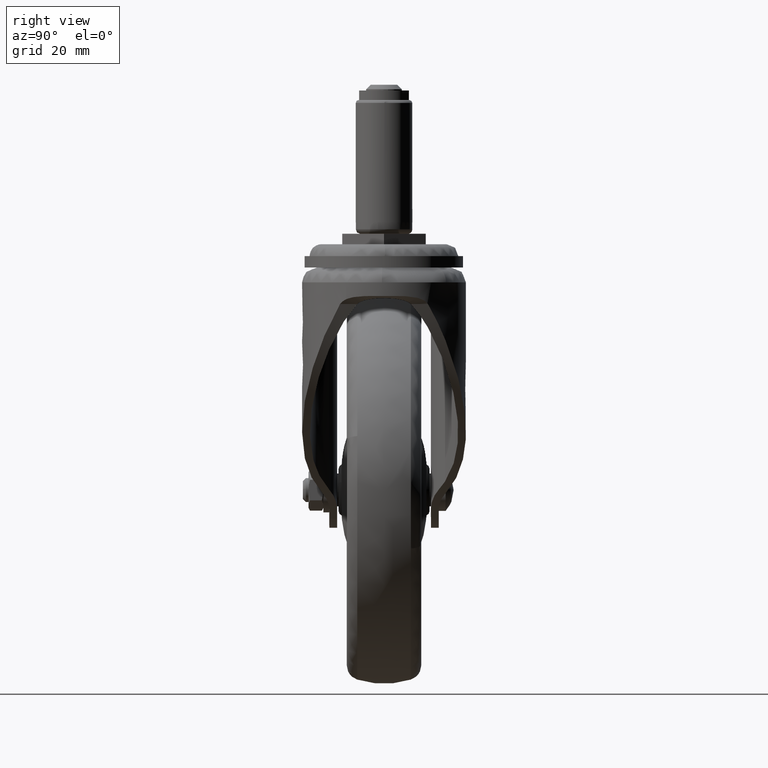
[diagram: clean part render]
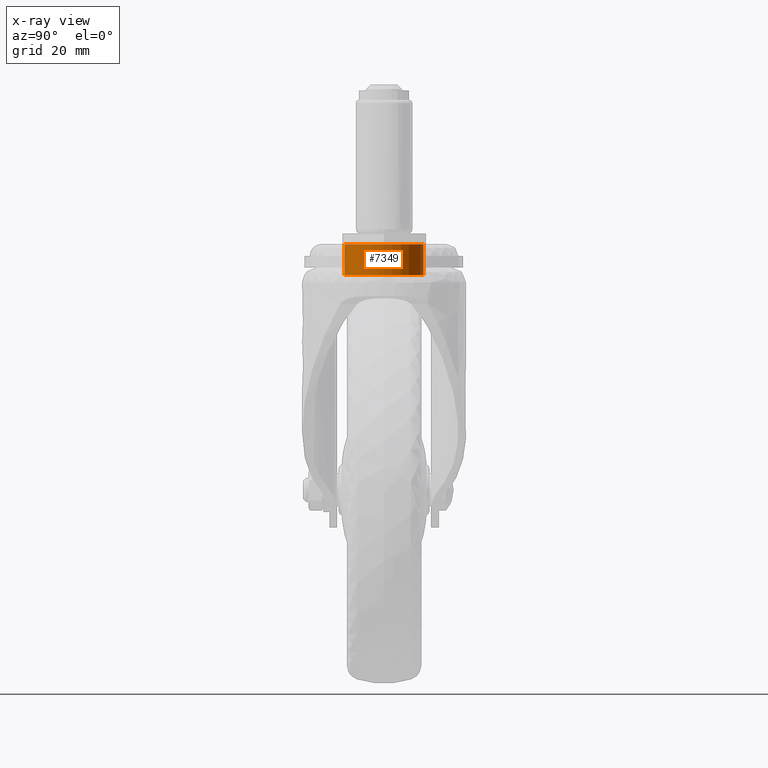
[diagram: x-ray — body ghosted, one internal face saturated and labeled with its STEP entity id]
A machine part, right view, then the same camera in x-ray: the body is ghosted and one INTERNAL B-rep face — a face not visible from any outside direction — is saturated and labeled: STEP entity #7349.
In plain terms, the highlighted face is a freeform B-spline surface patch.
Its self-contained STEP definition (entity closure, byte-faithful):
#7186=CARTESIAN_POINT('',(1.575757032839269,13.256677176934559,-12.914989000000100));
#7187=VERTEX_POINT('',#7186);
#7205=CARTESIAN_POINT('',(1.575757032839269,13.256677176934559,-2.499783000000091));
#7206=VERTEX_POINT('',#7205);
#7207=CARTESIAN_POINT('',(1.575757032839269,13.256677176934559,-12.914989000000100));
#7208=CARTESIAN_POINT('',(1.575757032839269,13.256677176934559,-2.499783000000091));
#7209=QUASI_UNIFORM_CURVE('',1,(#7207,#7208),.UNSPECIFIED.,.F.,.U.);
#7210=EDGE_CURVE('',#7187,#7206,#7209,.T.);
#7229=CARTESIAN_POINT('',(-0.814998003052351,-13.325099558915900,-2.499783000000091));
#7230=VERTEX_POINT('',#7229);
#7244=CARTESIAN_POINT('',(-0.814998003052351,-13.325099558915900,-12.914989000000100));
#7245=VERTEX_POINT('',#7244);
#7246=CARTESIAN_POINT('',(-0.814998003052351,-13.325099558915900,-12.914989000000100));
#7247=CARTESIAN_POINT('',(-0.814998003052351,-13.325099558915900,-2.499783000000091));
#7248=QUASI_UNIFORM_CURVE('',1,(#7246,#7247),.UNSPECIFIED.,.F.,.U.);
#7249=EDGE_CURVE('',#7245,#7230,#7248,.T.);
#7267=CARTESIAN_POINT('',(-0.814998002790341,-13.325099558931919,-13.175369150000099));
#7268=CARTESIAN_POINT('',(12.510101556141580,-14.140097561722262,-13.175369150000103));
#7269=CARTESIAN_POINT('',(13.325099558931919,-0.814998002790341,-13.175369150000099));
#7270=CARTESIAN_POINT('',(14.094745726379246,11.768605602707337,-13.175369150000101));
#7271=CARTESIAN_POINT('',(1.575757032667726,13.256677176954941,-13.175369150000105));
#7272=CARTESIAN_POINT('',(-0.814998002790341,-13.325099558931919,-2.232893346250089));
#7273=CARTESIAN_POINT('',(12.510101556141580,-14.140097561722262,-2.232893346250089));
#7274=CARTESIAN_POINT('',(13.325099558931919,-0.814998002790341,-2.232893346250089));
#7275=CARTESIAN_POINT('',(14.094745726379246,11.768605602707337,-2.232893346250089));
#7276=CARTESIAN_POINT('',(1.575757032667726,13.256677176954941,-2.232893346250090));
#7284=(BOUNDED_SURFACE()B_SPLINE_SURFACE(2,1,((#7267,#7272),(#7268,#7273),(#7269,#7274),(#7270,#7275),(#7271,#7276)),.UNSPECIFIED.,.F.,.F.,.U.)B_SPLINE_SURFACE_WITH_KNOTS((3,2,3),(2,2),(0.0,22.119004230723270,43.353248292217600),(0.0,10.942475803750019),.UNSPECIFIED.)GEOMETRIC_REPRESENTATION_ITEM()RATIONAL_B_SPLINE_SURFACE(((1.0,1.0),(0.707106781186548,0.707106781186548),(1.0,1.0),(0.718822509939086,0.718822509939086),(0.977505800795127,0.977505800795127)))REPRESENTATION_ITEM('')SURFACE());
#7285=CARTESIAN_POINT('',(13.350000000000000,0.0,-12.914989000000100));
#7286=VERTEX_POINT('',#7285);
#7287=CARTESIAN_POINT('',(13.350000000000000,0.0,-12.914989000000100));
#7288=CARTESIAN_POINT('',(13.350000000000000,11.857129921141784,-12.914989000000102));
#7289=CARTESIAN_POINT('',(1.575757032839269,13.256677176934556,-12.914989000000107));
#7297=(BOUNDED_CURVE()B_SPLINE_CURVE(2,(#7287,#7288,#7289),.UNSPECIFIED.,.F.,.U.)B_SPLINE_CURVE_WITH_KNOTS((3,3),(0.500000000000000,0.729562473511271),.UNSPECIFIED.)CURVE()GEOMETRIC_REPRESENTATION_ITEM()RATIONAL_B_SPLINE_CURVE((1.0,0.731050832858024,0.956026754179314))REPRESENTATION_ITEM(''));
#7298=EDGE_CURVE('',#7286,#7187,#7297,.T.);
#7299=ORIENTED_EDGE('',*,*,#7298,.F.);
#7300=CARTESIAN_POINT('',(-0.814998003052351,-13.325099558915900,-12.914989000000098));
#7301=CARTESIAN_POINT('',(-0.407879390298906,-13.350000000000001,-12.914989000000103));
#7302=CARTESIAN_POINT('',(0.0,-13.350000000000000,-12.914989000000100));
#7303=CARTESIAN_POINT('',(13.350000000000000,-13.350000000000000,-12.914989000000100));
#7304=CARTESIAN_POINT('',(13.350000000000000,0.0,-12.914989000000100));
#7312=(BOUNDED_CURVE()B_SPLINE_CURVE(2,(#7300,#7301,#7302,#7303,#7304),.UNSPECIFIED.,.F.,.U.)B_SPLINE_CURVE_WITH_KNOTS((3,2,3),(0.239332962235183,0.250000000000000,0.500000000000000),.UNSPECIFIED.)CURVE()GEOMETRIC_REPRESENTATION_ITEM()RATIONAL_B_SPLINE_CURVE((0.976072041658659,0.987502787895432,1.0,0.707106781186548,1.0))REPRESENTATION_ITEM(''));
#7313=EDGE_CURVE('',#7245,#7286,#7312,.T.);
#7314=ORIENTED_EDGE('',*,*,#7313,.F.);
#7315=ORIENTED_EDGE('',*,*,#7249,.T.);
#7316=CARTESIAN_POINT('',(13.350000000000000,0.0,-2.499783000000091));
#7317=VERTEX_POINT('',#7316);
#7318=CARTESIAN_POINT('',(-0.814998003052351,-13.325099558915900,-2.499783000000091));
#7319=CARTESIAN_POINT('',(-0.407879390298907,-13.350000000000001,-2.499783000000090));
#7320=CARTESIAN_POINT('',(0.0,-13.350000000000000,-2.499783000000091));
#7321=CARTESIAN_POINT('',(13.350000000000000,-13.350000000000000,-2.499783000000090));
#7322=CARTESIAN_POINT('',(13.350000000000000,0.0,-2.499783000000091));
#7330=(BOUNDED_CURVE()B_SPLINE_CURVE(2,(#7318,#7319,#7320,#7321,#7322),.UNSPECIFIED.,.F.,.U.)B_SPLINE_CURVE_WITH_KNOTS((3,2,3),(0.739332962235183,0.750000000000000,1.0),.UNSPECIFIED.)CURVE()GEOMETRIC_REPRESENTATION_ITEM()RATIONAL_B_SPLINE_CURVE((0.976072041658659,0.987502787895432,1.0,0.707106781186548,1.0))REPRESENTATION_ITEM(''));
#7331=EDGE_CURVE('',#7230,#7317,#7330,.T.);
#7332=ORIENTED_EDGE('',*,*,#7331,.T.);
#7333=CARTESIAN_POINT('',(13.350000000000000,0.0,-2.499783000000091));
#7334=CARTESIAN_POINT('',(13.350000000000000,11.857129921141736,-2.499783000000091));
#7335=CARTESIAN_POINT('',(1.575757032839270,13.256677176934554,-2.499783000000091));
#7343=(BOUNDED_CURVE()B_SPLINE_CURVE(2,(#7333,#7334,#7335),.UNSPECIFIED.,.F.,.U.)B_SPLINE_CURVE_WITH_KNOTS((3,3),(0.0,0.229562473511270),.UNSPECIFIED.)CURVE()GEOMETRIC_REPRESENTATION_ITEM()RATIONAL_B_SPLINE_CURVE((1.0,0.731050832858024,0.956026754179313))REPRESENTATION_ITEM(''));
#7344=EDGE_CURVE('',#7317,#7206,#7343,.T.);
#7345=ORIENTED_EDGE('',*,*,#7344,.T.);
#7346=ORIENTED_EDGE('',*,*,#7210,.F.);
#7347=EDGE_LOOP('',(#7299,#7314,#7315,#7332,#7345,#7346));
#7348=FACE_OUTER_BOUND('',#7347,.T.);
#7349=ADVANCED_FACE('',(#7348),#7284,.F.);